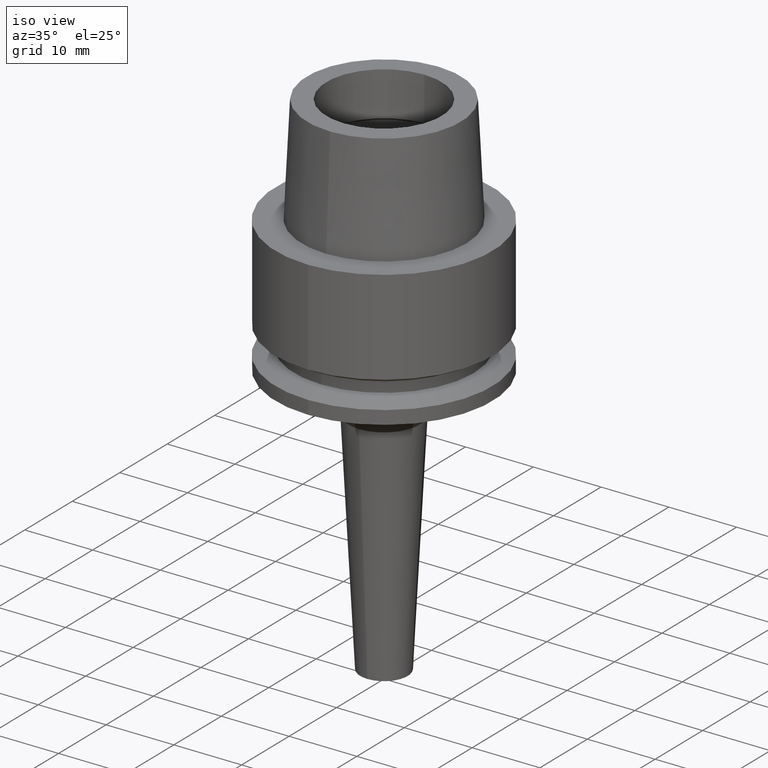
[diagram: clean part render]
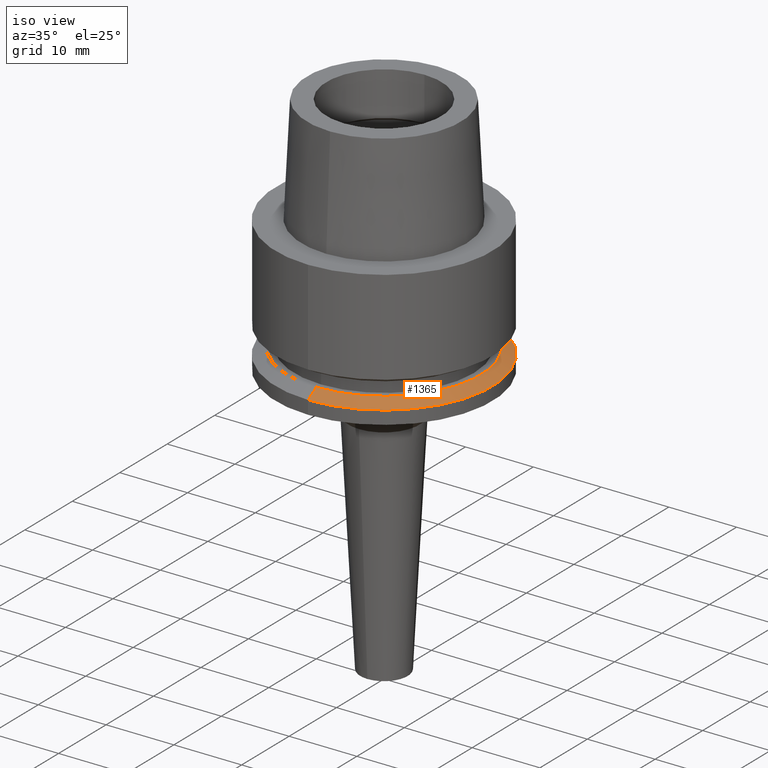
[diagram: same view with one face highlighted and labeled with its STEP entity id]
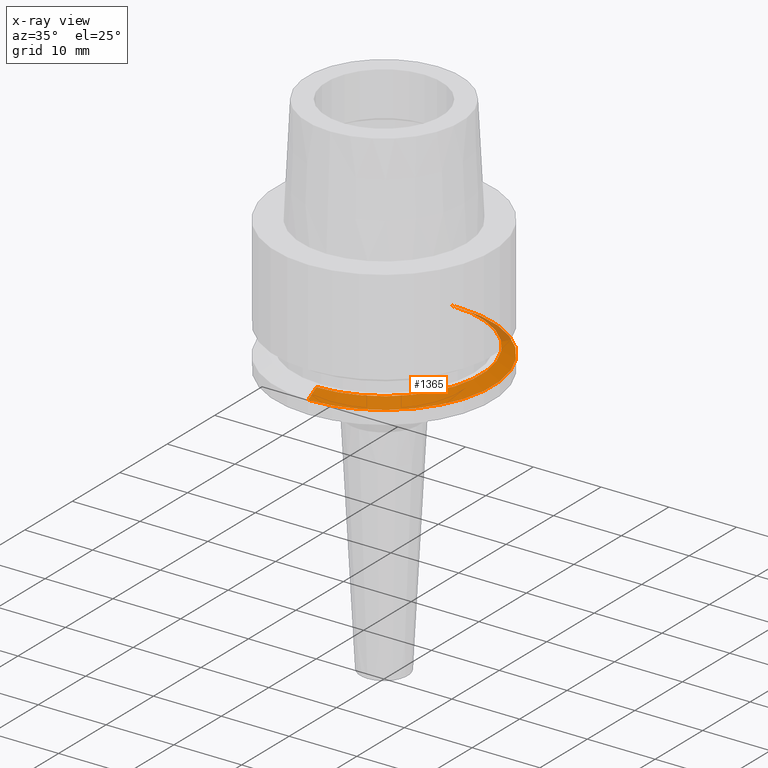
[diagram: x-ray of the same camera — body ghosted, the highlighted face saturated]
A machine part, iso view. The second image highlights one B-rep face of the part: STEP entity #1365.
The next image is the same camera in x-ray: the body ghosted, the highlighted face saturated — about 6% of this face is hidden behind the body in this view.
In plain terms, the highlighted conical surface has half-angle 60 deg.
Its self-contained STEP definition (entity closure, byte-faithful):
#536=DIRECTION('',(0.E0,-8.660254037848E-1,-4.999999999994E-1));
#537=VECTOR('',#536,2.041451884325E0);
#538=CARTESIAN_POINT('',(0.E0,-1.423205080757E1,-1.7E1));
#539=LINE('',#538,#537);
#551=DIRECTION('',(0.E0,8.660254037848E-1,-4.999999999994E-1));
#552=VECTOR('',#551,2.041451884325E0);
#553=CARTESIAN_POINT('',(0.E0,1.423205080757E1,-1.7E1));
#554=LINE('',#553,#552);
#558=CARTESIAN_POINT('',(0.E0,1.010206699503E-14,-1.802072594216E1));
#559=DIRECTION('',(0.E0,0.E0,-1.E0));
#560=DIRECTION('',(0.E0,1.E0,0.E0));
#561=AXIS2_PLACEMENT_3D('',#558,#559,#560);
#574=CARTESIAN_POINT('',(0.E0,1.010206699503E-14,-1.7E1));
#575=DIRECTION('',(0.E0,0.E0,-1.E0));
#576=DIRECTION('',(0.E0,1.E0,0.E0));
#577=AXIS2_PLACEMENT_3D('',#574,#575,#576);
#804=CARTESIAN_POINT('',(0.E0,1.6E1,-1.802072594216E1));
#805=VERTEX_POINT('',#804);
#806=CARTESIAN_POINT('',(0.E0,-1.6E1,-1.802072594216E1));
#807=VERTEX_POINT('',#806);
#808=CARTESIAN_POINT('',(0.E0,1.423205080757E1,-1.7E1));
#809=VERTEX_POINT('',#808);
#810=CARTESIAN_POINT('',(0.E0,-1.423205080757E1,-1.7E1));
#811=VERTEX_POINT('',#810);
#1353=CARTESIAN_POINT('',(0.E0,1.010206699503E-14,-1.751036297108E1));
#1354=DIRECTION('',(0.E0,0.E0,-1.E0));
#1355=DIRECTION('',(0.E0,-1.E0,0.E0));
#1356=AXIS2_PLACEMENT_3D('',#1353,#1354,#1355);
#1357=CONICAL_SURFACE('',#1356,1.511602540378E1,6.E1);
#1358=ORIENTED_EDGE('',*,*,#1343,.T.);
#1359=ORIENTED_EDGE('',*,*,#1320,.T.);
#1360=ORIENTED_EDGE('',*,*,#1347,.F.);
#1362=ORIENTED_EDGE('',*,*,#1361,.F.);
#1363=EDGE_LOOP('',(#1358,#1359,#1360,#1362));
#1364=FACE_OUTER_BOUND('',#1363,.F.);
#562=CIRCLE('',#561,1.6E1);
#578=CIRCLE('',#577,1.423205080757E1);
#1320=EDGE_CURVE('',#805,#807,#562,.T.);
#1343=EDGE_CURVE('',#809,#805,#554,.T.);
#1347=EDGE_CURVE('',#811,#807,#539,.T.);
#1361=EDGE_CURVE('',#809,#811,#578,.T.);
#1365=ADVANCED_FACE('',(#1364),#1357,.T.);